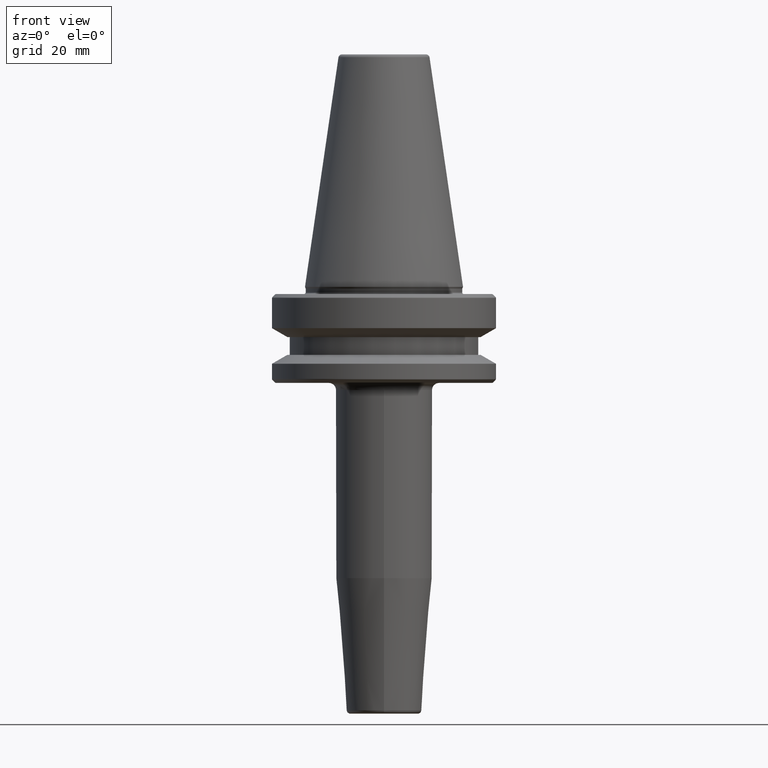
[diagram: clean part render]
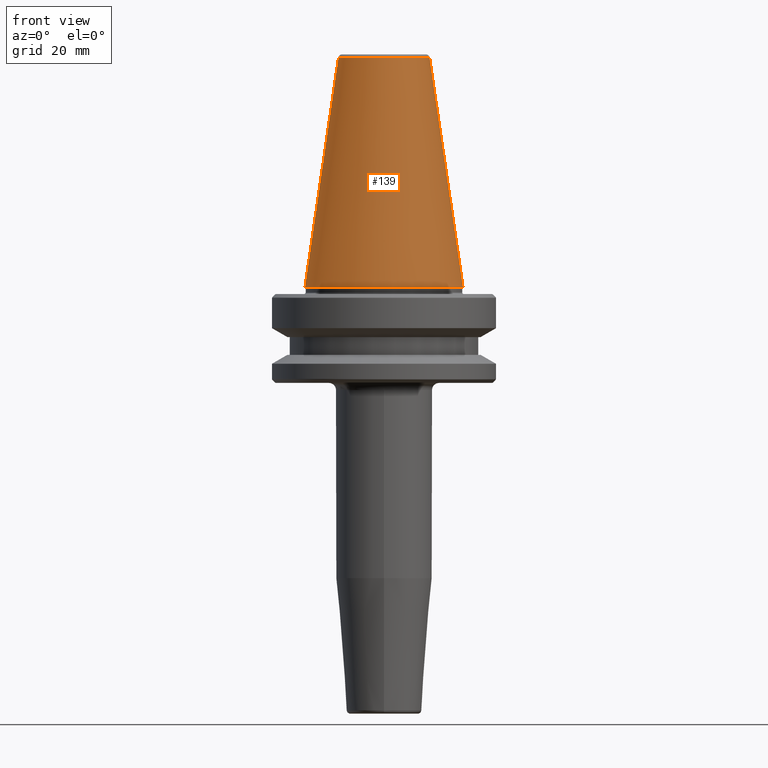
[diagram: same view with one face highlighted and labeled with its STEP entity id]
A machine part, front view. The second image highlights one B-rep face of the part: STEP entity #139.
In plain terms, the highlighted conical surface has half-angle 8.297 deg.
Its self-contained STEP definition (entity closure, byte-faithful):
#9 = CONICAL_SURFACE ( 'NONE', #338, 12.81219950706224800, 0.1448138465474191100 ) ;
#29 = CARTESIAN_POINT ( 'NONE',  ( 12.81219950706224800, 2.145409711370550300E-015, 64.54430822726730800 ) ) ;
#39 = DIRECTION ( 'NONE',  ( 1.000000000000000000, 0.0000000000000000000, 0.0000000000000000000 ) ) ;
#71 = CARTESIAN_POINT ( 'NONE',  ( 0.0000000000000000000, 0.0000000000000000000, 0.0000000000000000000 ) ) ;
#139 = ADVANCED_FACE ( 'NONE', ( #671 ), #9, .T. ) ;
#146 = DIRECTION ( 'NONE',  ( -0.1443082272673071000, 0.0000000000000000000, -0.9895327864921743500 ) ) ;
#175 = CARTESIAN_POINT ( 'NONE',  ( 12.81219950706224800, 1.569041911636107800E-015, 64.54430822726730800 ) ) ;
#224 = EDGE_LOOP ( 'NONE', ( #1000, #694, #1116, #354 ) ) ;
#269 = VERTEX_POINT ( 'NONE', #676 ) ;
#286 = VERTEX_POINT ( 'NONE', #617 ) ;
#332 = AXIS2_PLACEMENT_3D ( 'NONE', #1055, #729, #39 ) ;
#338 = AXIS2_PLACEMENT_3D ( 'NONE', #611, #819, #522 ) ;
#354 = ORIENTED_EDGE ( 'NONE', *, *, #866, .T. ) ;
#399 = CIRCLE ( 'NONE', #1184, 22.22500000000000500 ) ;
#445 = LINE ( 'NONE', #175, #684 ) ;
#522 = DIRECTION ( 'NONE',  ( -1.000000000000000000, 0.0000000000000000000, 0.0000000000000000000 ) ) ;
#527 = EDGE_CURVE ( 'NONE', #711, #990, #445, .T. ) ;
#566 = EDGE_CURVE ( 'NONE', #269, #286, #650, .T. ) ;
#611 = CARTESIAN_POINT ( 'NONE',  ( 0.0000000000000000000, 0.0000000000000000000, 64.54430822726730800 ) ) ;
#617 = CARTESIAN_POINT ( 'NONE',  ( -22.22500000000000500, 2.721777511104993200E-015, 0.0000000000000000000 ) ) ;
#650 = LINE ( 'NONE', #936, #894 ) ;
#671 = FACE_OUTER_BOUND ( 'NONE', #224, .T. ) ;
#676 = CARTESIAN_POINT ( 'NONE',  ( -12.81219950706224800, 0.0000000000000000000, 64.54430822726730800 ) ) ;
#684 = VECTOR ( 'NONE', #747, 1000.000000000000000 ) ;
#694 = ORIENTED_EDGE ( 'NONE', *, *, #722, .F. ) ;
#711 = VERTEX_POINT ( 'NONE', #29 ) ;
#722 = EDGE_CURVE ( 'NONE', #269, #711, #830, .T. ) ;
#729 = DIRECTION ( 'NONE',  ( -0.0000000000000000000, -0.0000000000000000000, 1.000000000000000000 ) ) ;
#747 = DIRECTION ( 'NONE',  ( 0.1443082272673071000, 1.767266086135364600E-017, -0.9895327864921743500 ) ) ;
#819 = DIRECTION ( 'NONE',  ( 0.0000000000000000000, 0.0000000000000000000, -1.000000000000000000 ) ) ;
#830 = CIRCLE ( 'NONE', #332, 12.81219950706224800 ) ;
#866 = EDGE_CURVE ( 'NONE', #286, #990, #399, .T. ) ;
#878 = DIRECTION ( 'NONE',  ( 1.000000000000000000, 0.0000000000000000000, 0.0000000000000000000 ) ) ;
#894 = VECTOR ( 'NONE', #146, 1000.000000000000000 ) ;
#936 = CARTESIAN_POINT ( 'NONE',  ( -12.81219950706224800, 0.0000000000000000000, 64.54430822726730800 ) ) ;
#990 = VERTEX_POINT ( 'NONE', #1043 ) ;
#1000 = ORIENTED_EDGE ( 'NONE', *, *, #527, .F. ) ;
#1043 = CARTESIAN_POINT ( 'NONE',  ( 22.22500000000000500, 0.0000000000000000000, 0.0000000000000000000 ) ) ;
#1055 = CARTESIAN_POINT ( 'NONE',  ( 0.0000000000000000000, 0.0000000000000000000, 64.54430822726730800 ) ) ;
#1116 = ORIENTED_EDGE ( 'NONE', *, *, #566, .T. ) ;
#1146 = DIRECTION ( 'NONE',  ( -0.0000000000000000000, -0.0000000000000000000, 1.000000000000000000 ) ) ;
#1184 = AXIS2_PLACEMENT_3D ( 'NONE', #71, #1146, #878 ) ;